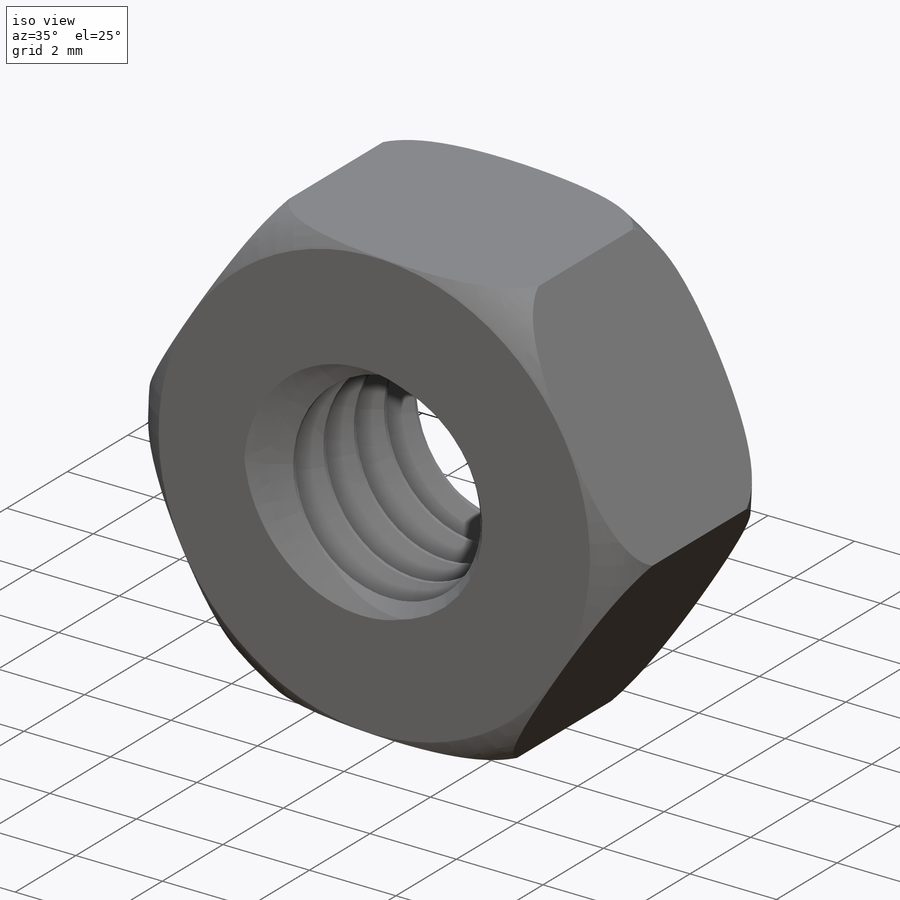
[diagram: iso view]
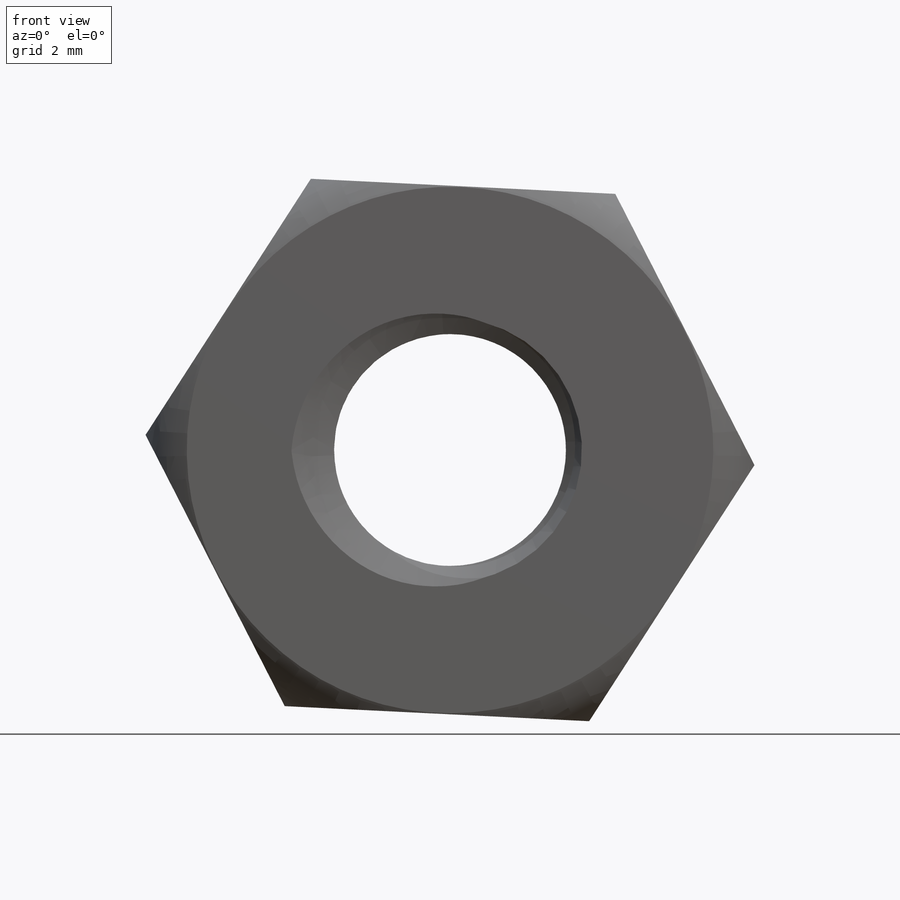
[diagram: front view]
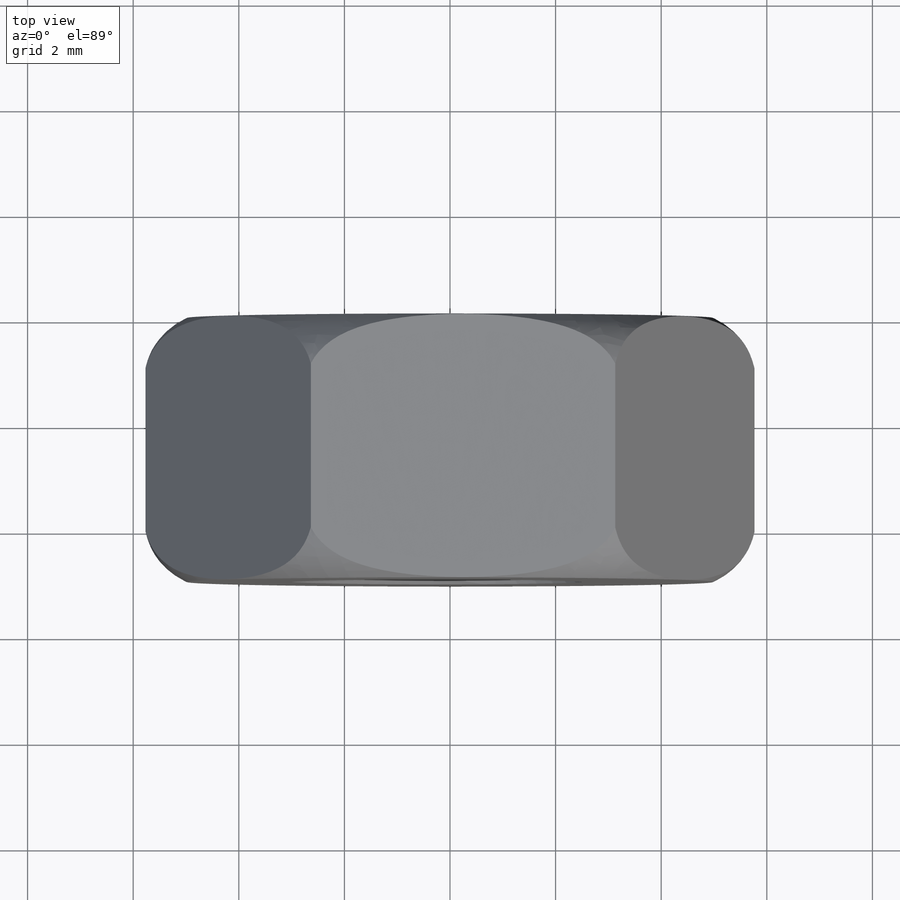
[diagram: top view]
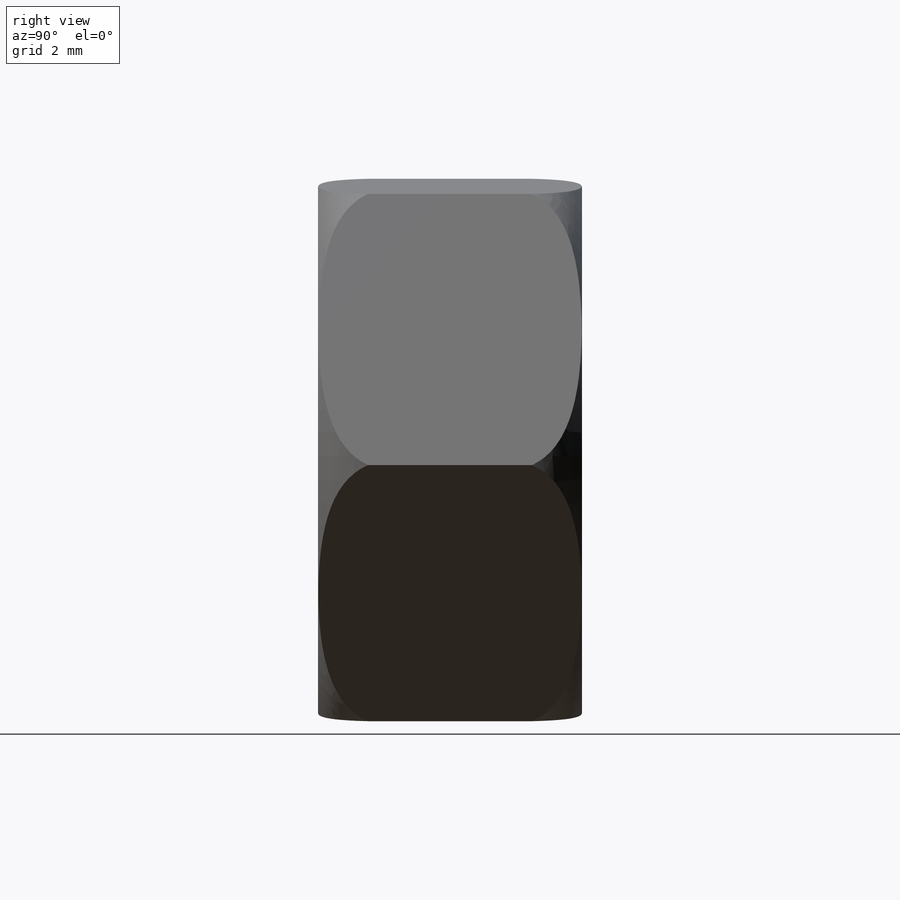
[diagram: right view]
SOLIDWORKS PART (.sldprt)
format: sldprt  version: not decoded by parser v0  size: 382,464 bytes
history: native  units: mm
features: sketch x6, plane x5, material x1, extrude x1, cut_revolve x1, mirror x1, cut_extrude x1, helix x1, chamfer x1, sweep x1 (+9 scaffold rows collapsed)
feature tree (28):
  scaffold x9  (default folders/planes/origin — collapsed)
  material  "Material <sin especificar>"
  plane  "Ön Düzlem"
  plane  "Üst Düzlem"
  plane  "Sağ Düzlem"
  sketch  "Sketch1"  dims[D1=~5.450701mm]
  extrude  "Boss-Extrude1"  Depth=5mm
  plane  "Plane1"
  sketch  "Sketch10"
  sketch  "Sketch6"  dims[D1=0.66mm D2=0.9mm]
  plane  "Plane2"  Offset=2.5mm
  cut_revolve  "Cut-Revolve6"  Angle=360deg
  mirror  "Mirror1"
  sketch  "Sketch11"  dims[D1=~3.886102mm]
  cut_extrude  "Cut-Extrude1"  Depth=5mm
  sketch  "Sketch12"  dims[D1=~3.333119mm]
  helix  "Helix/Spiral2"  Pitch=6mm
  chamfer  "Chamfer2"  Distance=0.3mm Angle=45deg
  sketch  "Sketch13"  dims[c1.D1=~0.750838mm c2.D1=60.0deg c2.D2=0.93mm c2.D3=0.93mm c3.D3=150.0deg c4.D3=0.93mm]
  sweep  "Cut-Sweep2"
decode coverage: 10 of 13 modeling features carry decoded parameters
note: ~ marks probable driven/reference dimensions
note: suppression state not decoded; provenance and decode notes live in map.json
